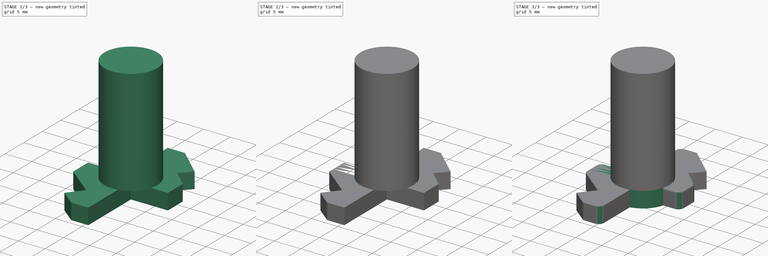
[diagram: build sequence overview — one tinted view per stage of 3, left to right]
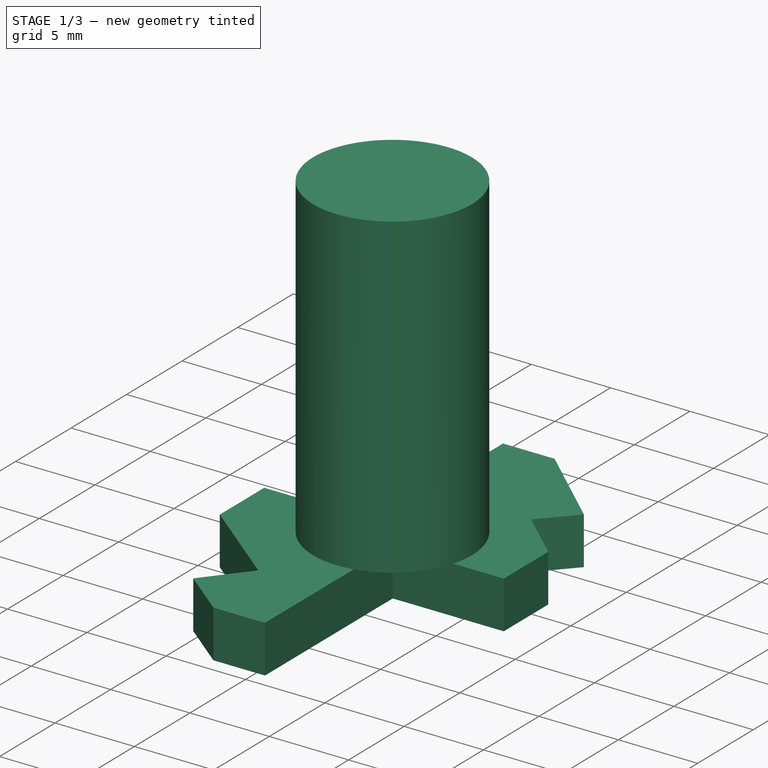
[diagram: stage 1 of 3 — iso view after this stage's code; geometry added in this stage tinted green]
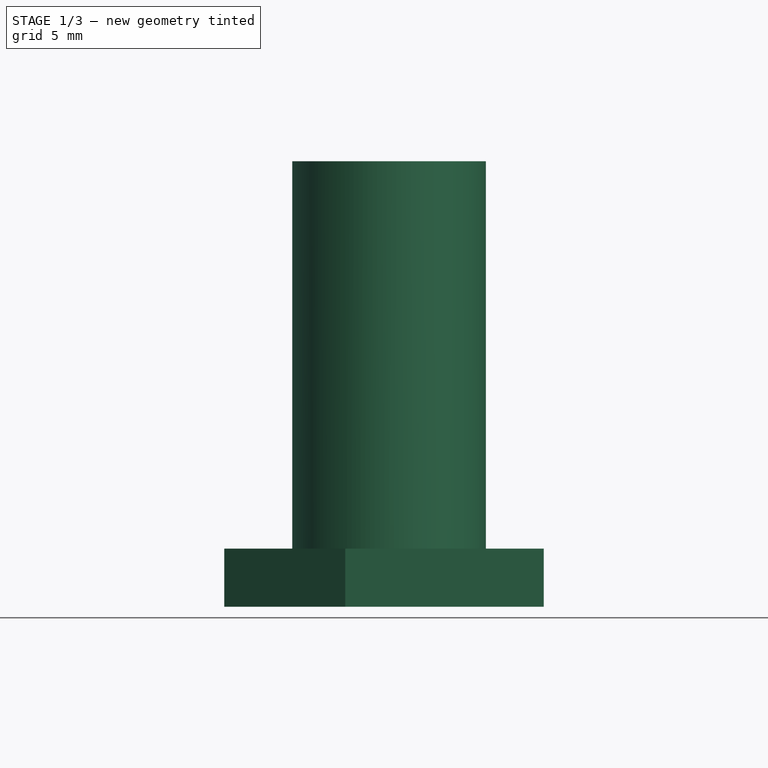
[diagram: stage 1 of 3 — front view after this stage's code; geometry added in this stage tinted green]
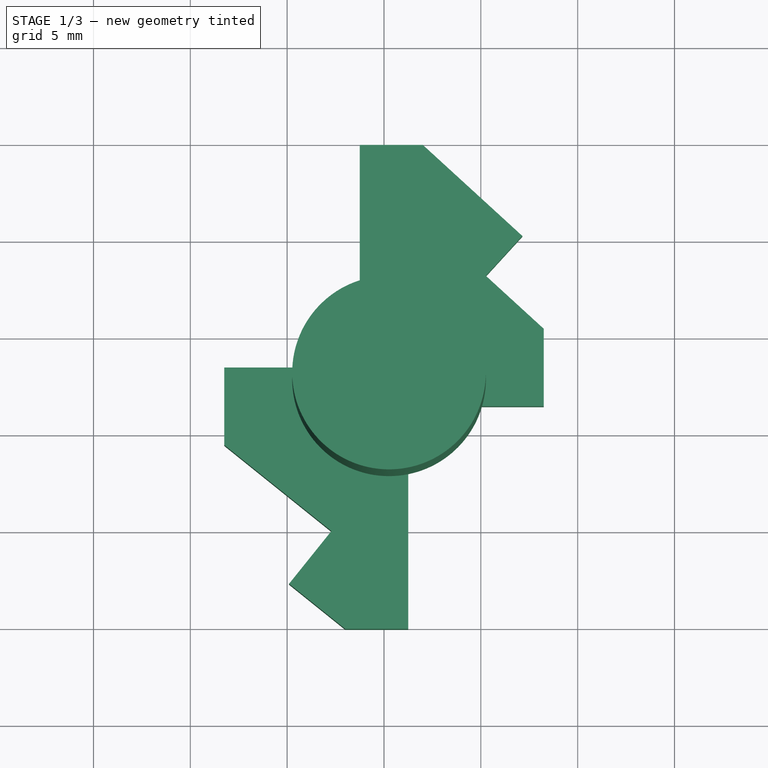
[diagram: stage 1 of 3 — top view after this stage's code; geometry added in this stage tinted green]
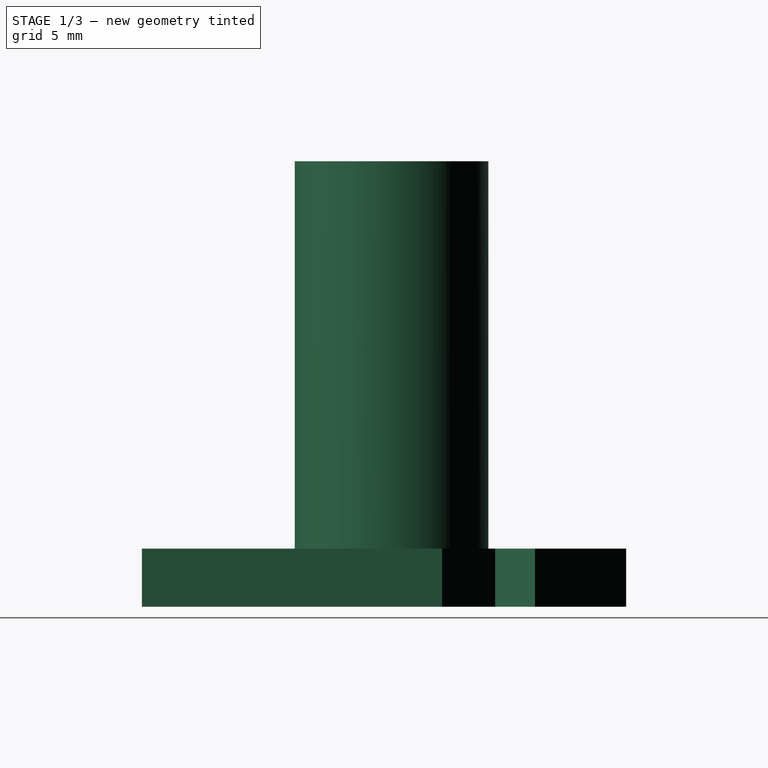
[diagram: stage 1 of 3 — right view after this stage's code; geometry added in this stage tinted green]
FCSTD DOCUMENT  (FreeCAD 0.17R13519 (Git))
Label: SFP-Puller
License: All rights reserved
LicenseURL: http://en.wikipedia.org/wiki/All_rights_reserved
objects: Sketcher::SketchObject×3, PartDesign::Pad×3, PartDesign::Fillet×2, PartDesign::FeatureBase×1, PartDesign::Point×1, PartDesign::Line×1, PartDesign::SubtractiveCylinder×1, PartDesign::Pocket×1, PartDesign::Body×1
note: 19 computed .brp shape members not serialized (recipe doc carries the construction recipe); baked Part::Feature solids carry a one-line shape summary decoded from their .brp

FEATURE [Sketcher::SketchObject] Sketch
  MapMode = 5
  Support = -> [XY_Plane]
  sketch-geometry (18):
    g0: LineSegment StartX=-1.25 StartY=4.96939 StartZ=0 EndX=-1.25 EndY=-6.53061 EndZ=0
    g1: LineSegment StartX=-1.25 StartY=-6.53061 StartZ=0 EndX=-8.25 EndY=-6.53061 EndZ=0
    g2: LineSegment StartX=-8.25 StartY=-6.53061 StartZ=0 EndX=-8.25 EndY=-10.5306 EndZ=0
    g3: LineSegment StartX=-8.25 StartY=-10.5306 StartZ=0 EndX=-2.71516 EndY=-14.9746 EndZ=0
    g4: LineSegment StartX=-2.71516 StartY=-14.9746 StartZ=0 EndX=-4.90313 EndY=-17.6996 EndZ=0
    g5: LineSegment StartX=-4.90313 StartY=-17.6996 StartZ=0 EndX=-2 EndY=-20.0306 EndZ=0
    g6: LineSegment StartX=-2 StartY=-20.0306 StartZ=0 EndX=0 EndY=-20.0306 EndZ=0
    g7: LineSegment StartX=-1.25 StartY=4.96939 StartZ=0 EndX=0 EndY=4.96939 EndZ=0
    g8: GeomPoint X=0 Y=-20.0306 Z=0
    g9: LineSegment StartX=0 StartY=-20.0306 StartZ=0 EndX=1.25 EndY=-20.0306 EndZ=0
    g10: LineSegment StartX=1.25 StartY=-20.0306 StartZ=0 EndX=1.25 EndY=-8.53061 EndZ=0
    g11: LineSegment StartX=1.25 StartY=-8.53061 StartZ=0 EndX=8.25 EndY=-8.53061 EndZ=0
    g12: LineSegment StartX=8.25 StartY=-8.53061 StartZ=0 EndX=8.25 EndY=-4.53061 EndZ=0
    g13: LineSegment StartX=8.25 StartY=-4.53061 StartZ=0 EndX=5.25931 EndY=-1.79434 EndZ=0
    g14: LineSegment StartX=5.25931 StartY=-1.79434 StartZ=0 EndX=7.14271 EndY=0.264172 EndZ=0
    g15: LineSegment StartX=7.14271 StartY=0.264172 StartZ=0 EndX=2 EndY=4.96939 EndZ=0
    g16: LineSegment StartX=0 StartY=4.96939 StartZ=0 EndX=2 EndY=4.96939 EndZ=0
    g17: GeomPoint X=0 Y=-7.53061 Z=0
  constraints (45):
    c: Vertical(g0)
    c: Coincident(g0,g1)
    c: Coincident(g1,g2)
    c: Vertical(g2)
    c: Coincident(g2,g3)
    c: Coincident(g3,g4)
    c: Coincident(g4,g5)
    c: Coincident(g6,g5)
    c: Horizontal(g6)
    c: Perpendicular(g1,g0)
    c: Perpendicular(g3,g4)
    c: Perpendicular(g4,g5)
    c: Coincident(g7,g0)
    c: PointOnObject(g7,g-2)
    c: Horizontal(g7)
    c: DistanceX(g7,g7) = 1.25
    c: DistanceX(g1,g1) = 7
    c: DistanceX(g6,g6) = 2
    c: PointOnObject(g8,g-2)
    c: Coincident(g8,g6)
    c: DistanceY(g2,g2) = 4
    c: Horizontal(g9)
    c: DistanceX(g9,g9) = 1.25
    c: Coincident(g9,g6)
    c: Vertical(g10)
    c: Coincident(g10,g9)
    c: Coincident(g11,g10)
    c: DistanceX(g11,g11) = 7
    c: Vertical(g12)
    c: DistanceY(g12,g12) = -4
    c: Coincident(g12,g11)
    c: Perpendicular(g11,g10)
    c: Coincident(g13,g12)
    c: Coincident(g14,g13)
    c: Perpendicular(g13,g14)
    c: Coincident(g15,g14)
    c: Perpendicular(g14,g15)
    c: Horizontal(g16)
    c: DistanceX(g16,g16) = 2
    c: Coincident(g16,g7)
    c: Coincident(g15,g16)
    c: DistanceY(g6,g7) = 25
    c: DistanceY(g10,g10) = 11.5
    c: DistanceY(g0,g0) = 11.5
    c: Symmetric(g0,g10,g17)  'RootPoint'
FEATURE [Sketcher::SketchObject] Sketch001
  AttachmentOffset = pos=(0.26,-7.14,3) rot=(0,0,1;0rad)
  MapMode = 5
  Placement = pos=(0.26,-7.14,3) rot=(0,0,1;0rad)
  Support = -> [XY_Plane]
  sketch-geometry (1):
    g0: Circle CenterX=0 CenterY=0 CenterZ=0 NormalX=0 NormalY=0 NormalZ=1 AngleXU=0 Radius=5
  constraints (2):
    c: Radius(g0) = 5
    c: Coincident(g0,g-1)
FEATURE [Sketcher::SketchObject] Sketch002
  MapMode = 2
  Support = -> [Sketch]
  sketch-geometry (2):
    g0: GeomPoint X=0.26 Y=-7.14 Z=0
    g1: Circle CenterX=0.26 CenterY=-7.14 CenterZ=0 NormalX=0 NormalY=0 NormalZ=1 AngleXU=0 Radius=5
  constraints (4):
    c: DistanceX(g0) = 0.26
    c: DistanceY(g0) = -7.14
    c: Coincident(g1,g0)
    c: Radius(g1) = 5
FEATURE [PartDesign::FeatureBase] BaseFeature
FEATURE [PartDesign::Pad] Pad
  BaseFeature = -> BaseFeature
  Length = 3
  Length2 = 100
  Profile = -> Sketch
  Type = 0
FEATURE [PartDesign::Point] DatumPoint
  AttacherType = Attacher::AttachEnginePoint
  MapMode = 37
  Placement = pos=(-1.25,-0.780609,1.5) rot=(0,0,1;0rad)
  Support = -> [Pad]
FEATURE [PartDesign::Line] DatumLine
  AttacherType = Attacher::AttachEngineLine
  MapMode = 42
  Placement = pos=(0,-0.780609,1.5) rot=(0.57735,0.57735,0.57735;2.0944rad)
  Support = -> [Pad]
FEATURE [PartDesign::Pad] Pad001
  BaseFeature = -> Pad
  Length = 20
  Length2 = 100
  Profile = -> Sketch001
  Type = 0
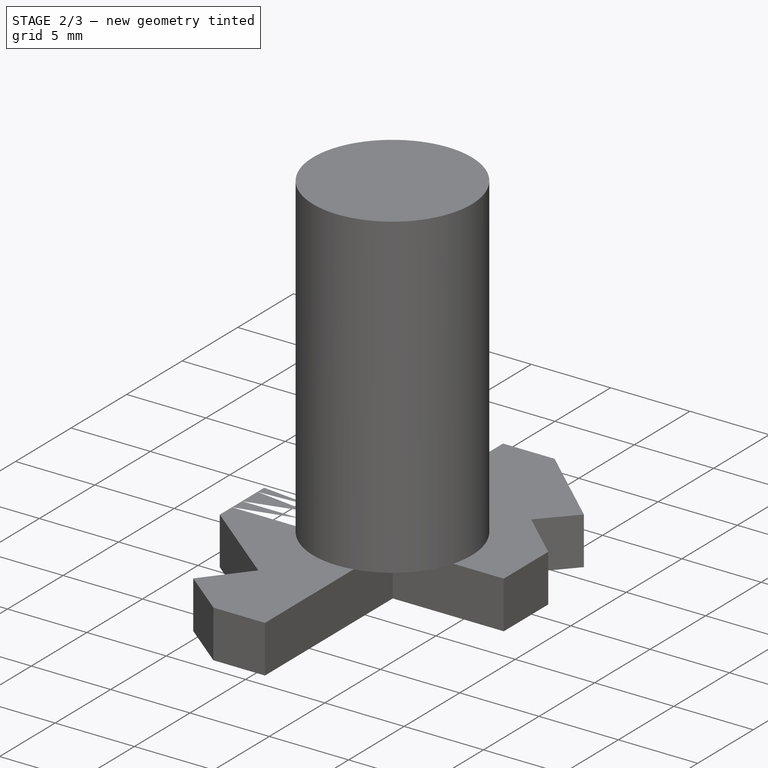
[diagram: stage 2 of 3 — iso view after this stage's code; geometry added in this stage tinted green]
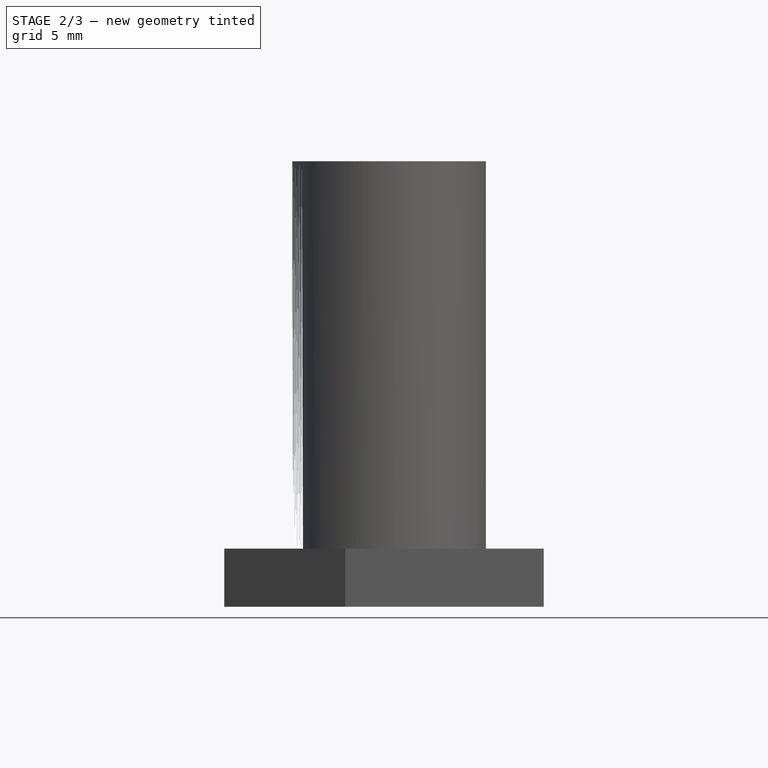
[diagram: stage 2 of 3 — front view after this stage's code; geometry added in this stage tinted green]
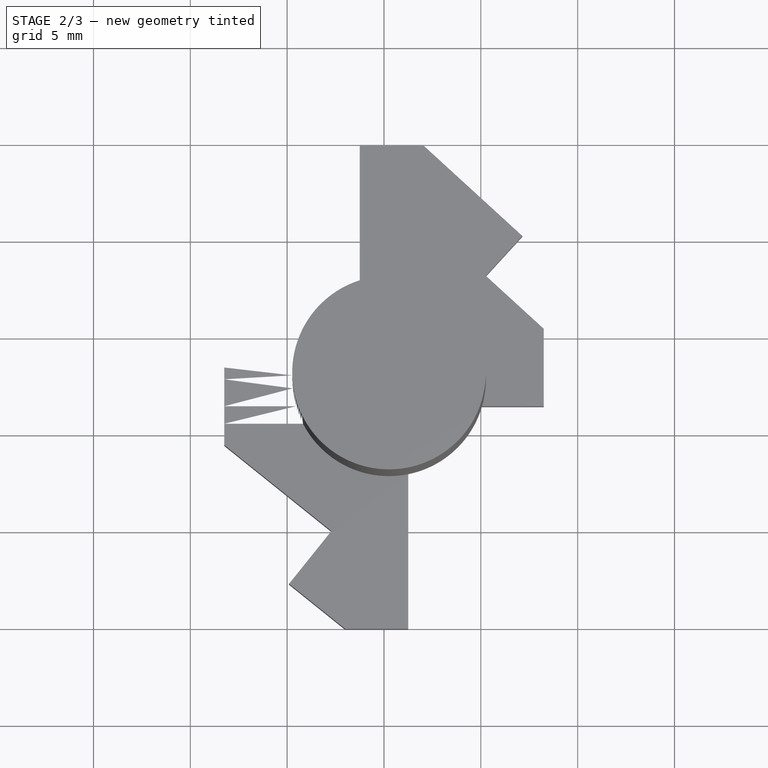
[diagram: stage 2 of 3 — top view after this stage's code; geometry added in this stage tinted green]
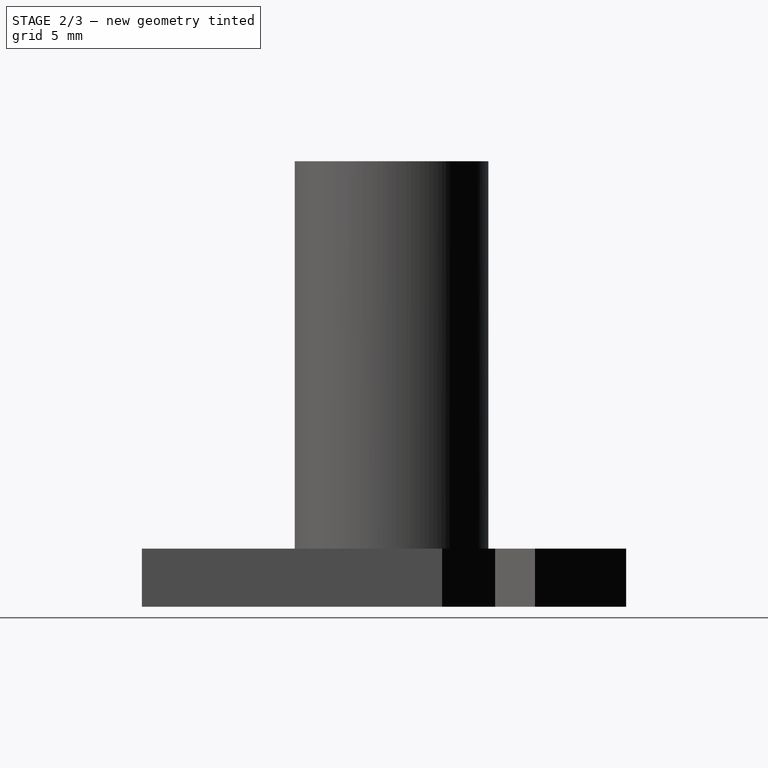
[diagram: stage 2 of 3 — right view after this stage's code; geometry added in this stage tinted green]
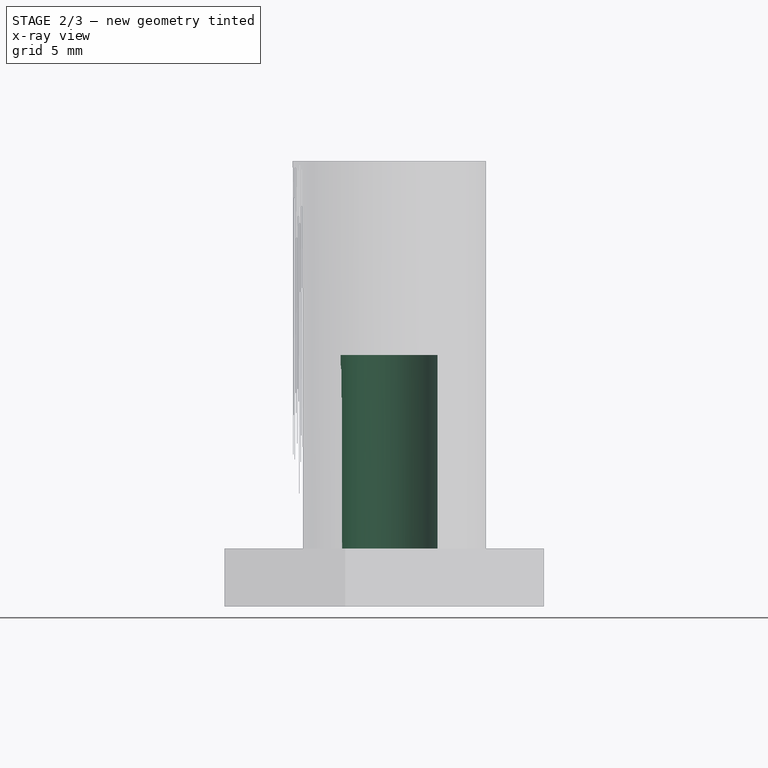
[diagram: stage 2 of 3 — x-ray composite at the front view; earlier geometry ghosted, this stage's added geometry solid]
FEATURE [PartDesign::SubtractiveCylinder] Cylinder
  Angle = 360
  AttacherType = Attacher::AttachEngine3D
  AttachmentOffset = pos=(0.26,-7.14,0) rot=(0,0,1;0rad)
  BaseFeature = -> Pad001
  Height = 10
  MapMode = 5
  Placement = pos=(0.26,-7.14,3) rot=(0,0,1;0rad)
  Radius = 2.5
  Support = -> [Pad001]
FEATURE [PartDesign::Pocket] Pocket
  BaseFeature = -> Cylinder
  Length = 20
  Length2 = 100
  Placement = pos=(0.26,-7.14,3) rot=(0,0,1;0rad)
  Profile = -> Cylinder [Face24]
  Type = 0
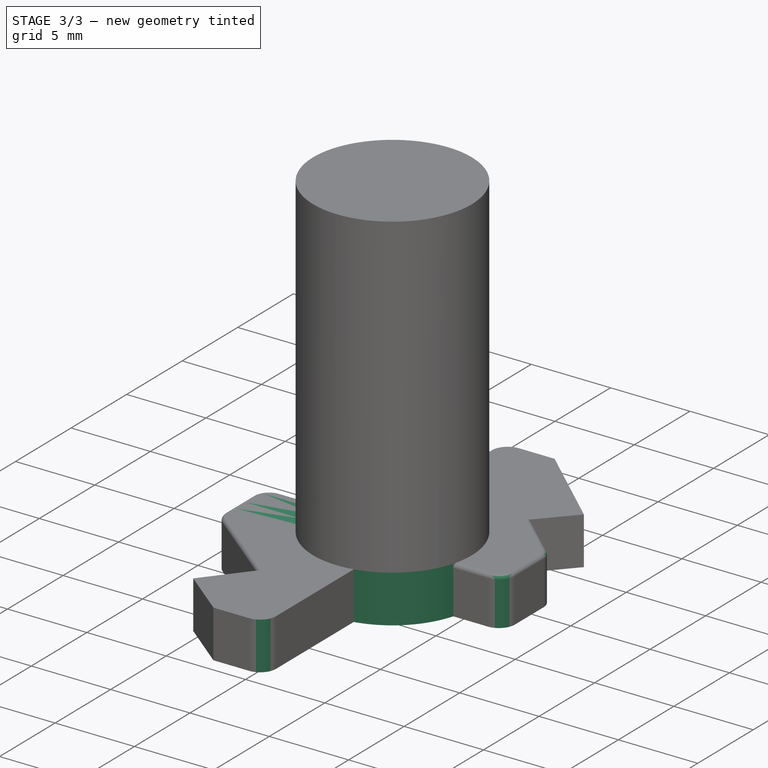
[diagram: stage 3 of 3 — iso view after this stage's code; geometry added in this stage tinted green]
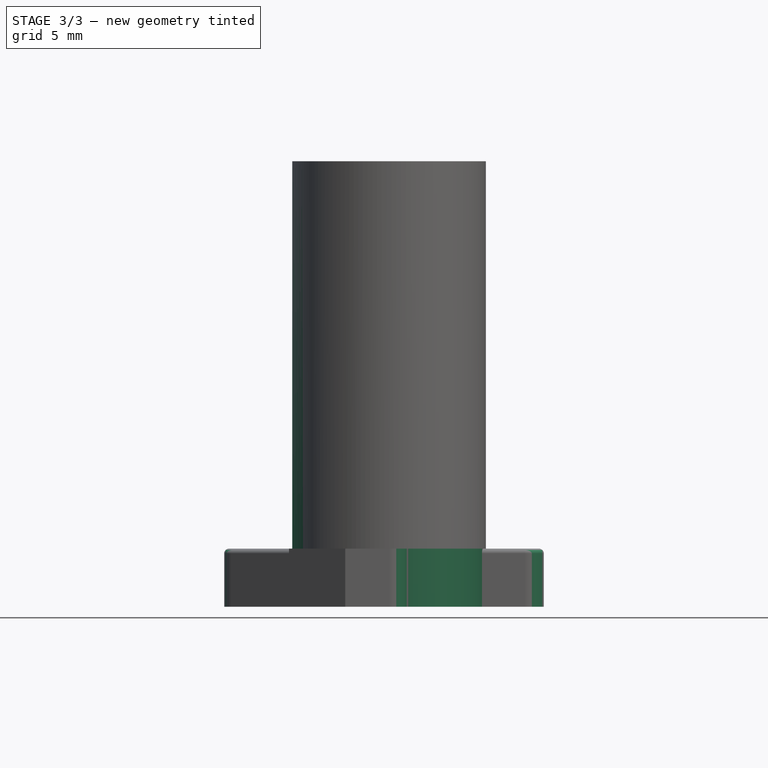
[diagram: stage 3 of 3 — front view after this stage's code; geometry added in this stage tinted green]
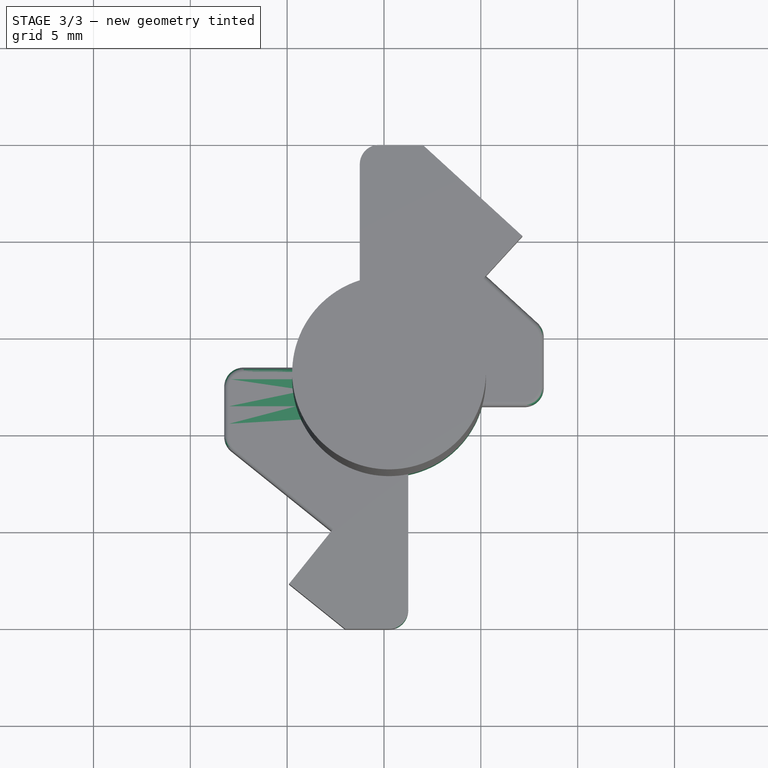
[diagram: stage 3 of 3 — top view after this stage's code; geometry added in this stage tinted green]
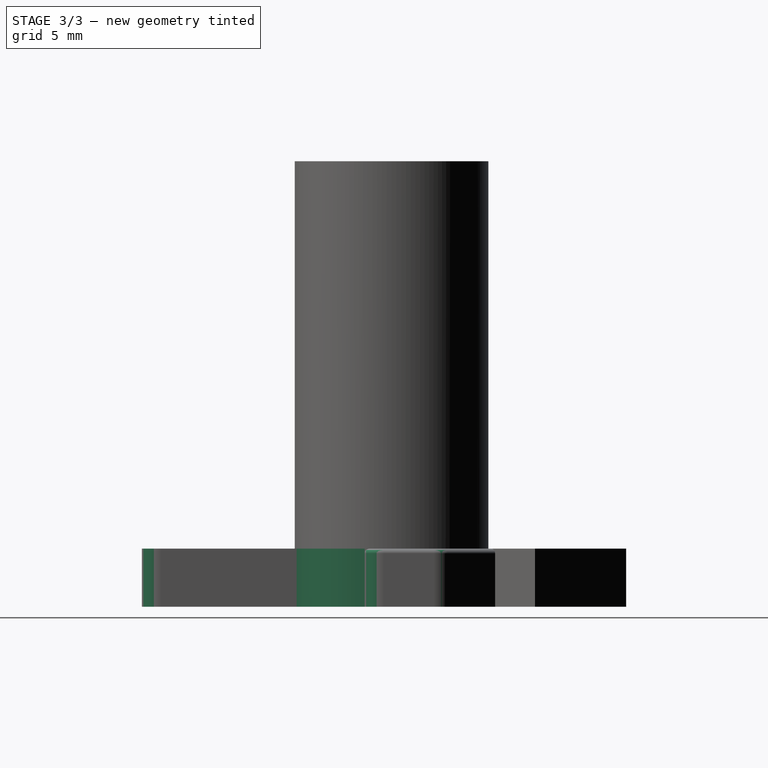
[diagram: stage 3 of 3 — right view after this stage's code; geometry added in this stage tinted green]
FEATURE [PartDesign::Pad] Pad002
  BaseFeature = -> Pocket
  Length = 3
  Length2 = 100
  Placement = pos=(0.26,-7.14,3) rot=(0,0,1;0rad)
  Profile = -> Sketch002
  Type = 0
FEATURE [PartDesign::Fillet] Fillet
  Base = -> Pad002 [Edge31,Edge32,Edge72,Edge68,Edge47,Edge1]
  BaseFeature = -> Pad002
  Placement = pos=(0.26,-7.14,3) rot=(0,0,1;0rad)
  Radius = 1
FEATURE [PartDesign::Fillet] Fillet001
  Base = -> Fillet [Edge68,Edge69,Edge27,Edge29]
  BaseFeature = -> Fillet
  Placement = pos=(0.26,-7.14,3) rot=(0,0,1;0rad)
  Radius = 0.25
FEATURE [PartDesign::Body] Body
  Group = -> [BaseFeature,Sketch,Pad,DatumPoint,DatumLine,Sketch001,Pad001,Cylinder,Pocket,Sketch002,Pad002,Fillet,Fillet001]
  Origin = -> Origin
  Tip = -> Fillet001
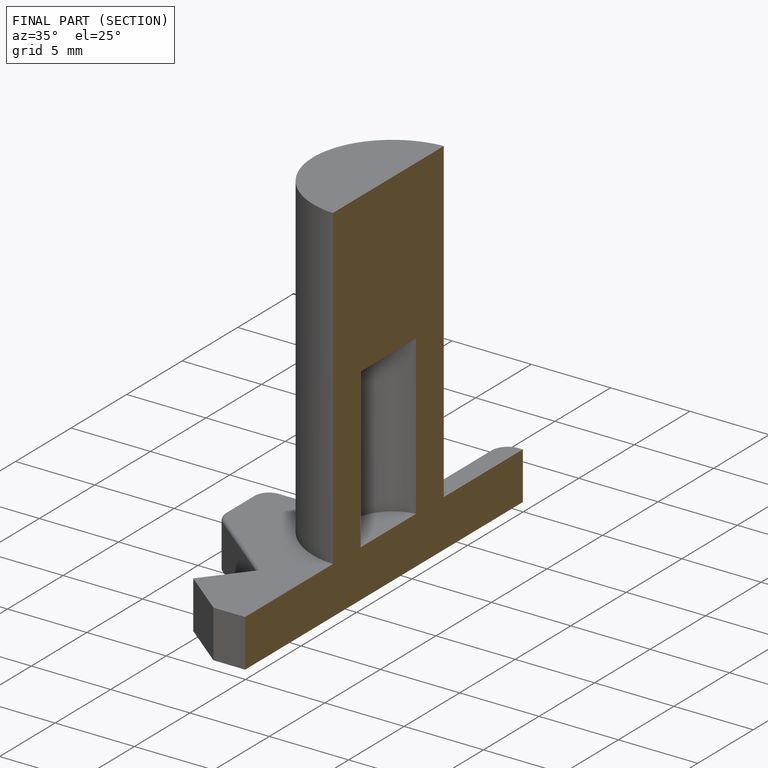
[diagram: finished part — half-section view (interior)]
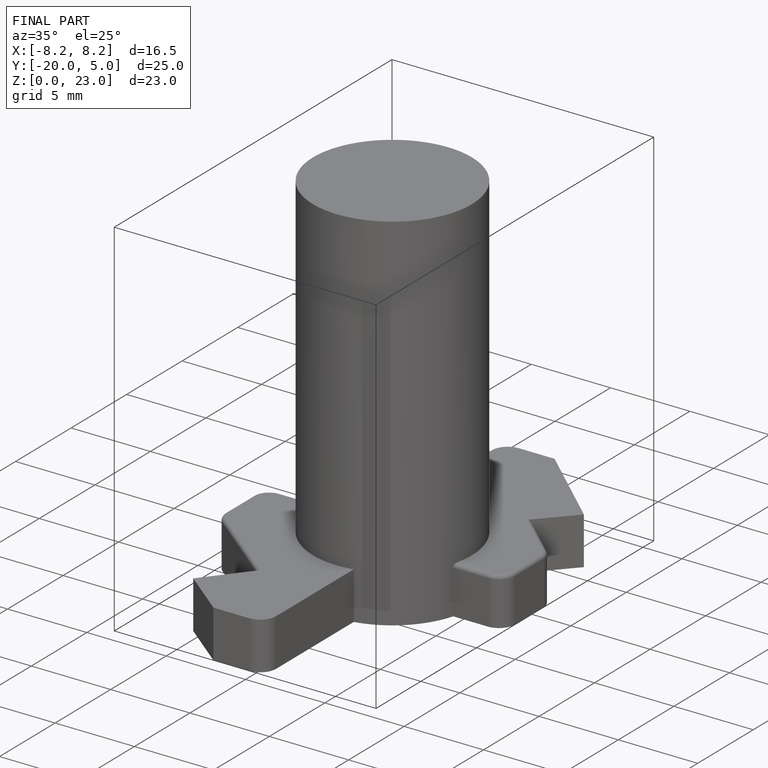
[diagram: finished part — iso view with bounding-box wireframe]
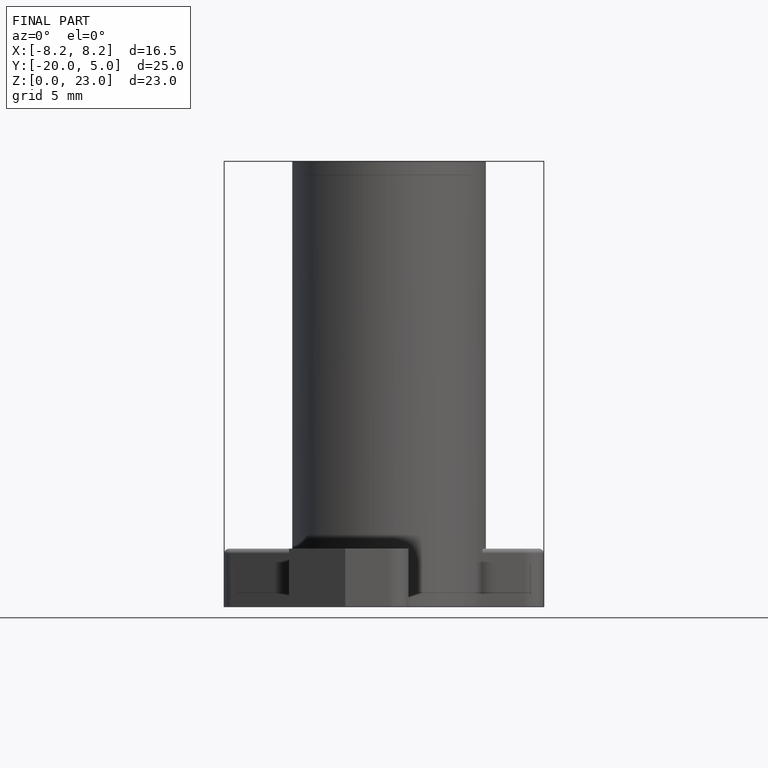
[diagram: finished part — front view with bounding-box wireframe]
